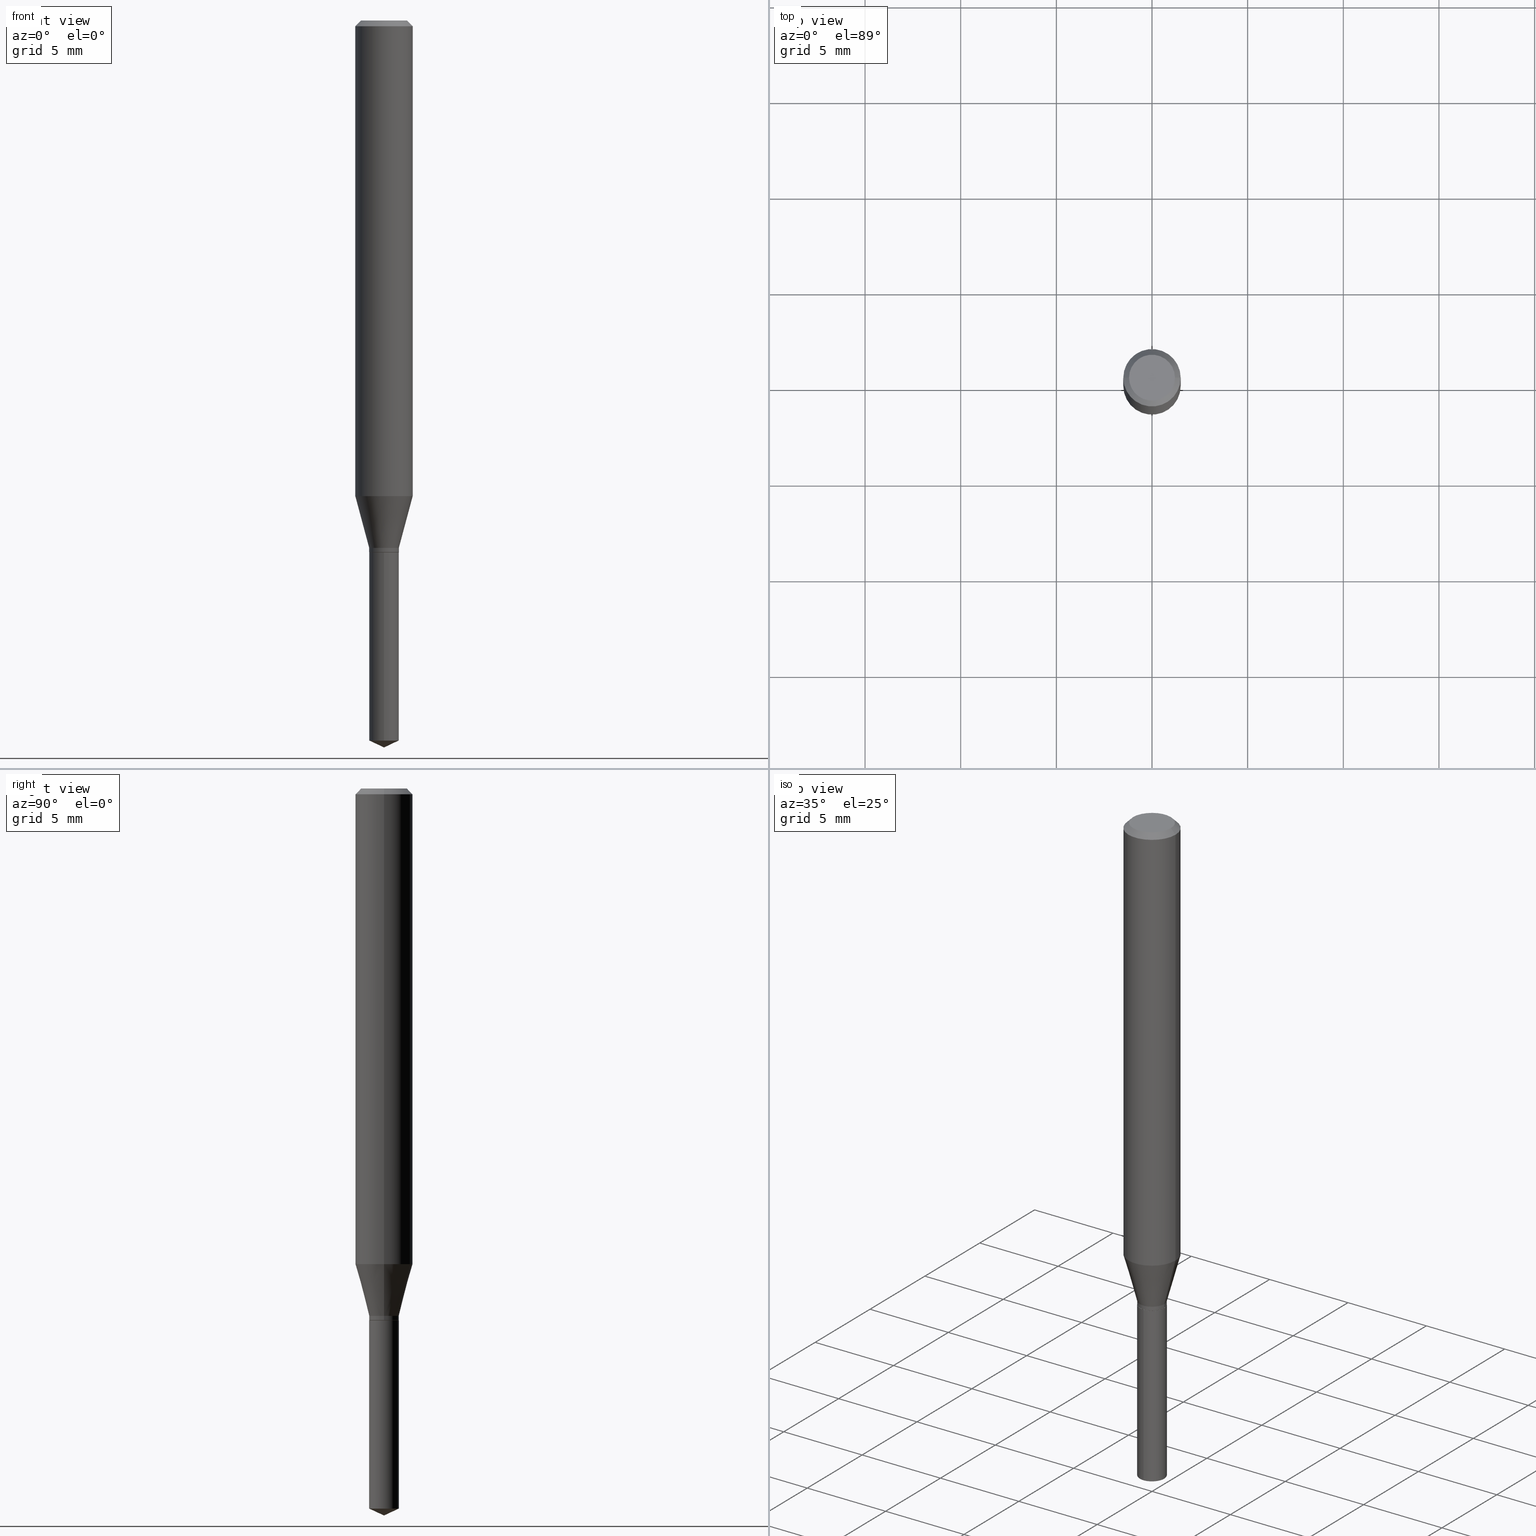
[diagram: canonical four-view strip — front | top / right | iso, engineering-drawing reading convention]
A machine part, canonical four-view strip (front | top / right | iso — engineering-drawing reading convention). The complete STEP part file that produces these views, byte-faithful:
ISO-10303-21;
HEADER;
FILE_DESCRIPTION (( 'STEP AP203' ),
    '1' );
FILE_NAME ('08168.STEP',
    '2024-04-24T13:42:21',
    ( '' ),
    ( '' ),
    'SwSTEP 2.0',
    'SolidWorks 2023',
    '' );
FILE_SCHEMA (( 'CONFIG_CONTROL_DESIGN' ));
ENDSEC;

DATA;
#1 = DIRECTION ( 'NONE',  ( 2.438088387897960049E-29, -3.491481338843145188E-15, -1.000000000000000000 ) ) ;
#2 = CONICAL_SURFACE ( 'NONE', #50, 0.05904999999999999832, 0.7853981633974450594 ) ;
#3 = ADVANCED_FACE ( 'NONE', ( #307 ), #194, .T. ) ;
#4 = ORIENTED_EDGE ( 'NONE', *, *, #460, .F. ) ;
#5 = PERSON_AND_ORGANIZATION_ROLE ( 'design_supplier' ) ;
#6 = FACE_OUTER_BOUND ( 'NONE', #361, .T. ) ;
#7 = DIRECTION ( 'NONE',  ( -2.445402730703145379E-29, 3.491575962694140016E-15, 1.000000000000000000 ) ) ;
#8 = PRODUCT_RELATED_PRODUCT_CATEGORY ( 'detail', '', ( #438 ) ) ;
#9 = AXIS2_PLACEMENT_3D ( 'NONE', #140, #23, #444 ) ;
#10 = VERTEX_POINT ( 'NONE', #227 ) ;
#11 = EDGE_LOOP ( 'NONE', ( #267, #309 ) ) ;
#12 = DIRECTION ( 'NONE',  ( -2.445468806185136597E-29, 3.491481338843145583E-15, 1.000000000000000000 ) ) ;
#13 = CIRCLE ( 'NONE', #343, 0.03049999999999999586 ) ;
#14 = EDGE_LOOP ( 'NONE', ( #466, #46, #18, #101 ) ) ;
#15 = ORIENTED_EDGE ( 'NONE', *, *, #61, .T. ) ;
#16 = APPROVAL_STATUS ( 'not_yet_approved' ) ;
#17 = CARTESIAN_POINT ( 'NONE',  ( -0.02999999999999999542, -3.605614277461681327E-15, -1.094499999999999806 ) ) ;
#18 = ORIENTED_EDGE ( 'NONE', *, *, #339, .T. ) ;
#19 =( CONVERSION_BASED_UNIT ( 'INCH', #274 ) LENGTH_UNIT ( ) NAMED_UNIT ( #145 ) );
#20 = LINE ( 'NONE', #312, #251 ) ;
#21 = VECTOR ( 'NONE', #288, 39.37007874015748143 ) ;
#22 = PERSON_AND_ORGANIZATION ( #310, #273 ) ;
#23 = DIRECTION ( 'NONE',  ( -2.445402730703145379E-29, 3.491575962694140016E-15, 1.000000000000000000 ) ) ;
#24 = CARTESIAN_POINT ( 'NONE',  ( 0.000000000000000000, 0.000000000000000000, 0.000000000000000000 ) ) ;
#25 = CARTESIAN_POINT ( 'NONE',  ( -0.05905000000000006077, 4.195754854663395916E-16, -2.904631170795524694E-30 ) ) ;
#26 = DIRECTION ( 'NONE',  ( -2.445468806185136597E-29, 3.491481338843145583E-15, 1.000000000000000000 ) ) ;
#27 = FACE_OUTER_BOUND ( 'NONE', #127, .T. ) ;
#28 = CARTESIAN_POINT ( 'NONE',  ( 2.676565608369631794E-29, -3.821426325363822773E-15, -1.094499999999999806 ) ) ;
#29 = AXIS2_PLACEMENT_3D ( 'NONE', #210, #364, #178 ) ;
#30 = EDGE_CURVE ( 'NONE', #196, #197, #373, .T. ) ;
#31 = CARTESIAN_POINT ( 'NONE',  ( 0.04724000000000000421, -3.852183633974369345E-16, -3.380025165621689721E-19 ) ) ;
#32 = LINE ( 'NONE', #135, #21 ) ;
#33 = EDGE_CURVE ( 'NONE', #469, #305, #334, .T. ) ;
#34 = DIRECTION ( 'NONE',  ( -2.445468806185136877E-29, 3.491481338843145188E-15, 1.000000000000000000 ) ) ;
#35 = ADVANCED_FACE ( 'NONE', ( #407 ), #38, .T. ) ;
#36 = VERTEX_POINT ( 'NONE', #476 ) ;
#37 = AXIS2_PLACEMENT_3D ( 'NONE', #436, #433, #359 ) ;
#38 = CYLINDRICAL_SURFACE ( 'NONE', #260, 0.03049999999999999586 ) ;
#39 = FACE_OUTER_BOUND ( 'NONE', #353, .T. ) ;
#40 = CIRCLE ( 'NONE', #381, 0.02999999999999999542 ) ;
#41 = EDGE_LOOP ( 'NONE', ( #52, #461, #418 ) ) ;
#42 = APPROVAL_DATE_TIME ( #44, #279 ) ;
#43 = EDGE_LOOP ( 'NONE', ( #163, #350, #84, #214 ) ) ;
#44 = DATE_AND_TIME ( #374, #387 ) ;
#45 = EDGE_CURVE ( 'NONE', #305, #197, #102, .T. ) ;
#46 = ORIENTED_EDGE ( 'NONE', *, *, #479, .T. ) ;
#47 = CARTESIAN_POINT ( 'NONE',  ( 8.265746106709734507E-48, -1.180129479067563789E-33, -3.380025165646692144E-19 ) ) ;
#48 = CALENDAR_DATE ( 2024, 24, 4 ) ;
#49 = AXIS2_PLACEMENT_3D ( 'NONE', #338, #7, #181 ) ;
#50 = AXIS2_PLACEMENT_3D ( 'NONE', #91, #480, #211 ) ;
#51 = ORIENTED_EDGE ( 'NONE', *, *, #218, .F. ) ;
#52 = ORIENTED_EDGE ( 'NONE', *, *, #470, .F. ) ;
#53 = ORIENTED_EDGE ( 'NONE', *, *, #460, .T. ) ;
#54 = LOCAL_TIME ( 9, 42, 21.00000000000000000, #153 ) ;
#55 = ORIENTED_EDGE ( 'NONE', *, *, #45, .F. ) ;
#56 = CIRCLE ( 'NONE', #152, 0.03049999999999999586 ) ;
#57 = ORIENTED_EDGE ( 'NONE', *, *, #346, .F. ) ;
#58 =( NAMED_UNIT ( * ) PLANE_ANGLE_UNIT ( ) SI_UNIT ( $, .RADIAN. ) );
#59 = DIRECTION ( 'NONE',  ( 1.000000000000000000, -6.982962677686272233E-15, 0.000000000000000000 ) ) ;
#60 = VERTEX_POINT ( 'NONE', #399 ) ;
#61 = EDGE_CURVE ( 'NONE', #231, #161, #20, .T. ) ;
#62 = FACE_OUTER_BOUND ( 'NONE', #463, .T. ) ;
#63 = LINE ( 'NONE', #238, #148 ) ;
#64 = FACE_OUTER_BOUND ( 'NONE', #203, .T. ) ;
#65 = DIRECTION ( 'NONE',  ( -6.982962677686265922E-15, -1.000000000000000000, 0.000000000000000000 ) ) ;
#66 = DIRECTION ( 'NONE',  ( -2.445468806185136597E-29, 3.491481338843145583E-15, 1.000000000000000000 ) ) ;
#67 = EDGE_CURVE ( 'NONE', #10, #259, #56, .T. ) ;
#68 = DIRECTION ( 'NONE',  ( 2.445468806185136597E-29, -3.491481338843145583E-15, -1.000000000000000000 ) ) ;
#69 = ADVANCED_FACE ( 'NONE', ( #391 ), #246, .F. ) ;
#70 = APPROVAL_PERSON_ORGANIZATION ( #277, #333, #358 ) ;
#71 = LINE ( 'NONE', #331, #283 ) ;
#72 = CARTESIAN_POINT ( 'NONE',  ( 4.132873053354867254E-48, -5.900647395337818946E-34, -1.690012582823346072E-19 ) ) ;
#73 = EDGE_LOOP ( 'NONE', ( #55, #272, #299, #406 ) ) ;
#74 = EDGE_CURVE ( 'NONE', #60, #161, #325, .T. ) ;
#75 = APPROVAL_STATUS ( 'not_yet_approved' ) ;
#76 = CARTESIAN_POINT ( 'NONE',  ( -0.05905000000000011628, -2.997711698410737591E-15, -0.9787499494439081404 ) ) ;
#77 = AXIS2_PLACEMENT_3D ( 'NONE', #486, #66, #447 ) ;
#78 = VECTOR ( 'NONE', #255, 39.37007874015748143 ) ;
#79 = DATE_TIME_ROLE ( 'classification_date' ) ;
#80 = EDGE_CURVE ( 'NONE', #259, #233, #321, .T. ) ;
#81 = DIRECTION ( 'NONE',  ( 1.000000000000000000, -6.982962677686272233E-15, 0.000000000000000000 ) ) ;
#82 = ORIENTED_EDGE ( 'NONE', *, *, #80, .T. ) ;
#83 = AXIS2_PLACEMENT_3D ( 'NONE', #47, #162, #471 ) ;
#84 = ORIENTED_EDGE ( 'NONE', *, *, #369, .F. ) ;
#85 = EDGE_CURVE ( 'NONE', #89, #233, #13, .T. ) ;
#86 = ORIENTED_EDGE ( 'NONE', *, *, #218, .T. ) ;
#87 = EDGE_CURVE ( 'NONE', #122, #36, #414, .T. ) ;
#88 = SECURITY_CLASSIFICATION_LEVEL ( 'unclassified' ) ;
#89 = VERTEX_POINT ( 'NONE', #324 ) ;
#90 = CONICAL_SURFACE ( 'NONE', #184, 0.02999999999999999542, 0.7853981633974056464 ) ;
#91 = CARTESIAN_POINT ( 'NONE',  ( 2.888098660104664642E-31, -4.123439461173780879E-17, -0.01181000000000007565 ) ) ;
#92 = ORIENTED_EDGE ( 'NONE', *, *, #362, .F. ) ;
#93 = DIRECTION ( 'NONE',  ( -6.982962677686265922E-15, -1.000000000000000000, 4.478439333875842027E-15 ) ) ;
#94 = CYLINDRICAL_SURFACE ( 'NONE', #465, 0.03049999999999998893 ) ;
#95 = CYLINDRICAL_SURFACE ( 'NONE', #169, 0.05905000000000006077 ) ;
#96 = DIRECTION ( 'NONE',  ( 0.2588190451025212391, 1.565188264969622362E-15, 0.9659258262890679791 ) ) ;
#97 = CIRCLE ( 'NONE', #107, 0.03049999999999998893 ) ;
#98 = PRODUCT_DEFINITION_FORMATION_WITH_SPECIFIED_SOURCE ( 'ANY', '', #438, .NOT_KNOWN. ) ;
#99 = CARTESIAN_POINT ( 'NONE',  ( 3.658567025404975087E-29, -5.223746797786701947E-15, -1.496099999999999985 ) ) ;
#100 = DIRECTION ( 'NONE',  ( 1.000000000000000000, 0.000000000000000000, 0.000000000000000000 ) ) ;
#101 = ORIENTED_EDGE ( 'NONE', *, *, #449, .F. ) ;
#102 = LINE ( 'NONE', #360, #442 ) ;
#103 = CARTESIAN_POINT ( 'NONE',  ( -2.129803616694043302E-16, -0.03050000000000381919, -1.094499999999999806 ) ) ;
#104 = CARTESIAN_POINT ( 'NONE',  ( 2.393502470420357058E-29, -3.417287183877077478E-15, -0.9787499494439081404 ) ) ;
#105 = DIRECTION ( 'NONE',  ( -0.2588190451025212391, 5.211531920934549464E-15, 0.9659258262890679791 ) ) ;
#106 = ADVANCED_FACE ( 'NONE', ( #278 ), #2, .T. ) ;
#107 = AXIS2_PLACEMENT_3D ( 'NONE', #284, #247, #217 ) ;
#108 = AXIS2_PLACEMENT_3D ( 'NONE', #485, #437, #271 ) ;
#109 = FACE_OUTER_BOUND ( 'NONE', #254, .T. ) ;
#110 = DIRECTION ( 'NONE',  ( -0.7071067811865173747, 7.493145998870245297E-15, 0.7071067811865776598 ) ) ;
#111 = COORDINATED_UNIVERSAL_TIME_OFFSET ( 5, 0, .BEHIND. ) ;
#112 = DIRECTION ( 'NONE',  ( -2.445402730703145379E-29, 3.491575962694140016E-15, 1.000000000000000000 ) ) ;
#113 = ORIENTED_EDGE ( 'NONE', *, *, #67, .T. ) ;
#114 = DATE_TIME_ROLE ( 'creation_date' ) ;
#115 = CC_DESIGN_APPROVAL ( #333, ( #269 ) ) ;
#116 = ORIENTED_EDGE ( 'NONE', *, *, #171, .F. ) ;
#117 = PERSON_AND_ORGANIZATION ( #310, #273 ) ;
#118 = DIRECTION ( 'NONE',  ( 1.000000000000000000, -6.982962677686269077E-15, 0.000000000000000000 ) ) ;
#119 = CIRCLE ( 'NONE', #126, 0.04724000000000000421 ) ;
#120 = ORIENTED_EDGE ( 'NONE', *, *, #289, .F. ) ;
#121 = ADVANCED_FACE ( 'NONE', ( #235 ), #95, .T. ) ;
#122 = VERTEX_POINT ( 'NONE', #17 ) ;
#123 = EDGE_CURVE ( 'NONE', #195, #60, #396, .T. ) ;
#124 = ORIENTED_EDGE ( 'NONE', *, *, #489, .F. ) ;
#125 = CIRCLE ( 'NONE', #397, 0.03049999999999998893 ) ;
#126 = AXIS2_PLACEMENT_3D ( 'NONE', #243, #276, #430 ) ;
#127 = EDGE_LOOP ( 'NONE', ( #379, #428, #410, #385 ) ) ;
#128 = ORIENTED_EDGE ( 'NONE', *, *, #87, .T. ) ;
#129 = DIRECTION ( 'NONE',  ( 0.7071067811865452413, -7.319954787623248157E-15, -0.7071067811865497932 ) ) ;
#130 = ORIENTED_EDGE ( 'NONE', *, *, #344, .F. ) ;
#131 = AXIS2_PLACEMENT_3D ( 'NONE', #408, #348, #458 ) ;
#132 = EDGE_CURVE ( 'NONE', #305, #469, #119, .T. ) ;
#133 = CARTESIAN_POINT ( 'NONE',  ( 0.000000000000000000, 0.000000000000000000, 0.000000000000000000 ) ) ;
#134 = APPLICATION_PROTOCOL_DEFINITION ( 'international standard', 'config_control_design', 1994, #266 ) ;
#135 = CARTESIAN_POINT ( 'NONE',  ( 2.167155344068572500E-16, 0.03049999999999617600, -1.094500000000000028 ) ) ;
#136 = DIRECTION ( 'NONE',  ( 1.000000000000000000, -6.982962677686266711E-15, 0.000000000000000000 ) ) ;
#137 = CARTESIAN_POINT ( 'NONE',  ( -0.03049999999999998546, -3.587777106463602651E-15, -1.085299999999999931 ) ) ;
#138 = ADVANCED_FACE ( 'NONE', ( #62 ), #354, .T. ) ;
#139 = APPLICATION_PROTOCOL_DEFINITION ( 'international standard', 'config_control_design', 1994, #475 ) ;
#140 = CARTESIAN_POINT ( 'NONE',  ( 2.676565608369631794E-29, -3.821426325363822773E-15, -1.094499999999999806 ) ) ;
#141 = LOCAL_TIME ( 9, 42, 21.00000000000000000, #454 ) ;
#142 = CARTESIAN_POINT ( 'NONE',  ( -2.129803616694043302E-16, -0.03050000000000381919, -1.094499999999999806 ) ) ;
#143 = CLOSED_SHELL ( 'NONE', ( #420, #417, #366, #35, #426 ) ) ;
#144 = CARTESIAN_POINT ( 'NONE',  ( -2.129803616693949131E-16, -0.03050000000000517922, -1.481877616426272581 ) ) ;
#145 = DIMENSIONAL_EXPONENTS ( 1.000000000000000000, 0.000000000000000000, 0.000000000000000000, 0.000000000000000000, 0.000000000000000000, 0.000000000000000000, 0.000000000000000000 ) ;
#146 = FACE_OUTER_BOUND ( 'NONE', #11, .T. ) ;
#147 = DIRECTION ( 'NONE',  ( 1.000000000000000000, -6.982962677686266711E-15, 4.876176775795935232E-29 ) ) ;
#148 = VECTOR ( 'NONE', #478, 39.37007874015748143 ) ;
#149 = CARTESIAN_POINT ( 'NONE',  ( 3.623859889391714850E-29, -5.173984699363546681E-15, -1.481877616426272581 ) ) ;
#150 = DIRECTION ( 'NONE',  ( -0.7071067811865452413, 2.468850131082233000E-15, -0.7071067811865497932 ) ) ;
#151 = CARTESIAN_POINT ( 'NONE',  ( 2.676565608369631794E-29, -3.821426325363822773E-15, -1.094499999999999806 ) ) ;
#152 = AXIS2_PLACEMENT_3D ( 'NONE', #237, #317, #65 ) ;
#153 = COORDINATED_UNIVERSAL_TIME_OFFSET ( 5, 0, .BEHIND. ) ;
#154 = PERSON_AND_ORGANIZATION ( #310, #273 ) ;
#155 = AXIS2_PLACEMENT_3D ( 'NONE', #104, #252, #370 ) ;
#156 = EDGE_LOOP ( 'NONE', ( #228, #389, #130, #352 ) ) ;
#157 = ORIENTED_EDGE ( 'NONE', *, *, #45, .T. ) ;
#158 = VERTEX_POINT ( 'NONE', #172 ) ;
#159 = AXIS2_PLACEMENT_3D ( 'NONE', #149, #112, #448 ) ;
#160 = AXIS2_PLACEMENT_3D ( 'NONE', #225, #351, #377 ) ;
#161 = VERTEX_POINT ( 'NONE', #137 ) ;
#162 = DIRECTION ( 'NONE',  ( -2.445468806185136597E-29, 3.491481338843145583E-15, 1.000000000000000000 ) ) ;
#163 = ORIENTED_EDGE ( 'NONE', *, *, #74, .T. ) ;
#164 = EDGE_CURVE ( 'NONE', #158, #259, #282, .T. ) ;
#165 = PERSON_AND_ORGANIZATION_ROLE ( 'creator' ) ;
#166 = DIRECTION ( 'NONE',  ( -2.445468806185136877E-29, 3.491481338843145188E-15, 1.000000000000000000 ) ) ;
#167 = CC_DESIGN_DATE_AND_TIME_ASSIGNMENT ( #378, #79, ( #258 ) ) ;
#168 = DIRECTION ( 'NONE',  ( 1.000000000000000000, -6.982962677686266711E-15, 4.876176775795935232E-29 ) ) ;
#169 = AXIS2_PLACEMENT_3D ( 'NONE', #133, #26, #357 ) ;
#170 = CYLINDRICAL_SURFACE ( 'NONE', #77, 0.05905000000000006077 ) ;
#171 = EDGE_CURVE ( 'NONE', #469, #196, #450, .T. ) ;
#172 = CARTESIAN_POINT ( 'NONE',  ( 3.658567025404975087E-29, -5.223746797786701947E-15, -1.496099999999999985 ) ) ;
#173 = COORDINATED_UNIVERSAL_TIME_OFFSET ( 5, 0, .BEHIND. ) ;
#174 = DIRECTION ( 'NONE',  ( -2.445468806185136597E-29, 3.491481338843145583E-15, 1.000000000000000000 ) ) ;
#175 = FACE_OUTER_BOUND ( 'NONE', #73, .T. ) ;
#176 = DIRECTION ( 'NONE',  ( -2.445468806185136597E-29, 3.491481338843145583E-15, 1.000000000000000000 ) ) ;
#177 = ORIENTED_EDGE ( 'NONE', *, *, #292, .F. ) ;
#178 = DIRECTION ( 'NONE',  ( -6.982962677686266711E-15, -1.000000000000000000, 3.520397390770451109E-15 ) ) ;
#179 = DIRECTION ( 'NONE',  ( -6.328713451373374112E-15, -0.9063077870366492705, 0.4226182617407007180 ) ) ;
#180 = CARTESIAN_POINT ( 'NONE',  ( 2.676565608369631794E-29, -3.821426325363822773E-15, -1.094499999999999806 ) ) ;
#181 = DIRECTION ( 'NONE',  ( -6.982962677686265922E-15, -1.000000000000000000, 4.478439333875842027E-15 ) ) ;
#182 = LINE ( 'NONE', #453, #229 ) ;
#183 = DIRECTION ( 'NONE',  ( 0.7071067811865173747, -2.468850131081940727E-15, 0.7071067811865776598 ) ) ;
#184 = AXIS2_PLACEMENT_3D ( 'NONE', #180, #290, #371 ) ;
#185 = ORIENTED_EDGE ( 'NONE', *, *, #74, .F. ) ;
#186 = VECTOR ( 'NONE', #150, 39.37007874015748143 ) ;
#187 = PERSON_AND_ORGANIZATION ( #310, #273 ) ;
#188 = CARTESIAN_POINT ( 'NONE',  ( 2.676565608369631794E-29, -3.821426325363822773E-15, -1.094499999999999806 ) ) ;
#189 = ADVANCED_FACE ( 'NONE', ( #146 ), #403, .F. ) ;
#190 = CYLINDRICAL_SURFACE ( 'NONE', #49, 0.03049999999999999586 ) ;
#191 = FACE_OUTER_BOUND ( 'NONE', #392, .T. ) ;
#192 = ORIENTED_EDGE ( 'NONE', *, *, #369, .T. ) ;
#193 = CONICAL_SURFACE ( 'NONE', #363, 84.42940631927440620, 1.134464013796316229 ) ;
#194 = CONICAL_SURFACE ( 'NONE', #223, 0.03049999999999998546, 0.2617993877991499629 ) ;
#195 = VERTEX_POINT ( 'NONE', #405 ) ;
#196 = VERTEX_POINT ( 'NONE', #365 ) ;
#197 = VERTEX_POINT ( 'NONE', #219 ) ;
#198 = CIRCLE ( 'NONE', #131, 0.03049999999999998546 ) ;
#199 = AXIS2_PLACEMENT_3D ( 'NONE', #245, #174, #281 ) ;
#200 = AXIS2_PLACEMENT_3D ( 'NONE', #319, #239, #59 ) ;
#201 = EDGE_CURVE ( 'NONE', #161, #382, #367, .T. ) ;
#202 = CALENDAR_DATE ( 2024, 24, 4 ) ;
#203 = EDGE_LOOP ( 'NONE', ( #120, #409, #472, #268 ) ) ;
#204 = PERSON_AND_ORGANIZATION_ROLE ( 'design_owner' ) ;
#205 = DIRECTION ( 'NONE',  ( -6.982962677686265922E-15, -1.000000000000000000, 4.478439333875842027E-15 ) ) ;
#206 = CC_DESIGN_PERSON_AND_ORGANIZATION_ASSIGNMENT ( #423, #462, ( #258 ) ) ;
#207 = ORIENTED_EDGE ( 'NONE', *, *, #221, .T. ) ;
#208 = DIRECTION ( 'NONE',  ( -2.445402730703145379E-29, 3.491575962694140016E-15, 1.000000000000000000 ) ) ;
#209 =( NAMED_UNIT ( * ) SI_UNIT ( $, .STERADIAN. ) SOLID_ANGLE_UNIT ( ) );
#210 = CARTESIAN_POINT ( 'NONE',  ( -9.261705871415894043E-28, 1.322399773465276608E-13, 37.87397874015748300 ) ) ;
#211 = DIRECTION ( 'NONE',  ( -1.000000000000000000, 6.982962677686266711E-15, 0.000000000000000000 ) ) ;
#212 = FACE_OUTER_BOUND ( 'NONE', #14, .T. ) ;
#213 = CARTESIAN_POINT ( 'NONE',  ( 2.676565608369631794E-29, -3.821426325363822773E-15, -1.094499999999999806 ) ) ;
#214 = ORIENTED_EDGE ( 'NONE', *, *, #339, .F. ) ;
#215 = DATE_AND_TIME ( #432, #304 ) ;
#216 = DIRECTION ( 'NONE',  ( -2.445402730703145379E-29, 3.491575962694140016E-15, 1.000000000000000000 ) ) ;
#217 = DIRECTION ( 'NONE',  ( 1.000000000000000000, -6.982962677686271444E-15, 0.000000000000000000 ) ) ;
#218 = EDGE_CURVE ( 'NONE', #36, #122, #40, .T. ) ;
#219 = CARTESIAN_POINT ( 'NONE',  ( 0.05904999999999999832, -4.535783407291118600E-16, -0.01181000000000007565 ) ) ;
#220 = APPROVAL_DATE_TIME ( #336, #401 ) ;
#221 = EDGE_CURVE ( 'NONE', #122, #231, #182, .T. ) ;
#222 = CC_DESIGN_APPROVAL ( #401, ( #98 ) ) ;
#223 = AXIS2_PLACEMENT_3D ( 'NONE', #468, #416, #81 ) ;
#224 = AXIS2_PLACEMENT_3D ( 'NONE', #327, #68, #287 ) ;
#225 = CARTESIAN_POINT ( 'NONE',  ( 2.888098660104664642E-31, -4.123439461173780879E-17, -0.01181000000000007565 ) ) ;
#226 = CARTESIAN_POINT ( 'NONE',  ( 2.675342873966538993E-29, -3.819680584694400481E-15, -1.093999999999999861 ) ) ;
#227 = CARTESIAN_POINT ( 'NONE',  ( 2.167155344068667903E-16, 0.03049999999999482986, -1.481877616426272581 ) ) ;
#228 = ORIENTED_EDGE ( 'NONE', *, *, #435, .T. ) ;
#229 = VECTOR ( 'NONE', #110, 39.37007874015748143 ) ;
#230 = EDGE_LOOP ( 'NONE', ( #303, #157, #424, #116 ) ) ;
#231 = VERTEX_POINT ( 'NONE', #488 ) ;
#232 = DATE_AND_TIME ( #202, #141 ) ;
#233 = VERTEX_POINT ( 'NONE', #103 ) ;
#234 = CC_DESIGN_SECURITY_CLASSIFICATION ( #258, ( #98 ) ) ;
#235 = FACE_OUTER_BOUND ( 'NONE', #431, .T. ) ;
#236 = ORIENTED_EDGE ( 'NONE', *, *, #470, .T. ) ;
#237 = CARTESIAN_POINT ( 'NONE',  ( 3.623859889391714850E-29, -5.173984699363546681E-15, -1.481877616426272581 ) ) ;
#238 = CARTESIAN_POINT ( 'NONE',  ( 0.05905000000000006077, -4.123439461173744764E-16, 2.879382386107503023E-30 ) ) ;
#239 = DIRECTION ( 'NONE',  ( -2.445468806185136597E-29, 3.491481338843145583E-15, 1.000000000000000000 ) ) ;
#240 = CONICAL_SURFACE ( 'NONE', #37, 0.03049999999999998546, 0.2617993877991499629 ) ;
#241 =( GEOMETRIC_REPRESENTATION_CONTEXT ( 3 ) GLOBAL_UNCERTAINTY_ASSIGNED_CONTEXT ( ( #302 ) ) GLOBAL_UNIT_ASSIGNED_CONTEXT ( ( #19, #58, #209 ) ) REPRESENTATION_CONTEXT ( 'NONE', 'WORKASPACE' ) );
#242 = CIRCLE ( 'NONE', #199, 0.05904999999999999832 ) ;
#243 = CARTESIAN_POINT ( 'NONE',  ( 8.265746106709734507E-48, -1.180129479067563789E-33, -3.380025165646692144E-19 ) ) ;
#244 = AXIS2_PLACEMENT_3D ( 'NONE', #72, #1, #291 ) ;
#245 = CARTESIAN_POINT ( 'NONE',  ( 2.888098660104664642E-31, -4.123439461173780879E-17, -0.01181000000000007565 ) ) ;
#246 = PLANE ( 'NONE',  #108 ) ;
#247 = DIRECTION ( 'NONE',  ( -2.445468806185136597E-29, 3.491481338843145583E-15, 1.000000000000000000 ) ) ;
#248 = AXIS2_PLACEMENT_3D ( 'NONE', #188, #404, #118 ) ;
#249 = DIRECTION ( 'NONE',  ( -2.445468806185136597E-29, 3.491481338843145583E-15, 1.000000000000000000 ) ) ;
#250 = CC_DESIGN_PERSON_AND_ORGANIZATION_ASSIGNMENT ( #425, #165, ( #269 ) ) ;
#251 = VECTOR ( 'NONE', #427, 39.37007874015748143 ) ;
#252 = DIRECTION ( 'NONE',  ( -2.445468806185136597E-29, 3.491481338843145583E-15, 1.000000000000000000 ) ) ;
#253 = EDGE_CURVE ( 'NONE', #10, #89, #32, .T. ) ;
#254 = EDGE_LOOP ( 'NONE', ( #86, #207, #124, #4 ) ) ;
#255 = DIRECTION ( 'NONE',  ( 6.439704144417030353E-15, 0.9063077870366522681, 0.4226182617406943898 ) ) ;
#256 = PERSON_AND_ORGANIZATION ( #310, #273 ) ;
#257 = CARTESIAN_POINT ( 'NONE',  ( -9.261705871415894043E-28, 1.322399773465276608E-13, 37.87397874015748300 ) ) ;
#258 = SECURITY_CLASSIFICATION ( '', '', #88 ) ;
#259 = VERTEX_POINT ( 'NONE', #144 ) ;
#260 = AXIS2_PLACEMENT_3D ( 'NONE', #213, #208, #93 ) ;
#261 = CALENDAR_DATE ( 2024, 24, 4 ) ;
#262 = APPROVAL_STATUS ( 'not_yet_approved' ) ;
#263 = ADVANCED_FACE ( 'NONE', ( #64 ), #170, .T. ) ;
#264 = ORIENTED_EDGE ( 'NONE', *, *, #87, .F. ) ;
#265 = ORIENTED_EDGE ( 'NONE', *, *, #85, .F. ) ;
#266 = APPLICATION_CONTEXT ( 'configuration controlled 3d designs of mechanical parts and assemblies' ) ;
#267 = ORIENTED_EDGE ( 'NONE', *, *, #33, .T. ) ;
#268 = ORIENTED_EDGE ( 'NONE', *, *, #30, .F. ) ;
#269 = PRODUCT_DEFINITION ( 'UNKNOWN', '', #98, #390 ) ;
#270 = APPROVAL_DATE_TIME ( #215, #333 ) ;
#271 = DIRECTION ( 'NONE',  ( 1.000000000000000000, -6.982962677686265922E-15, 4.876176775795935793E-29 ) ) ;
#272 = ORIENTED_EDGE ( 'NONE', *, *, #33, .F. ) ;
#273 = ORGANIZATION ( 'UNSPECIFIED', 'UNSPECIFIED', '' ) ;
#274 = LENGTH_MEASURE_WITH_UNIT ( LENGTH_MEASURE( 0.02539999999999999897 ), #341 );
#275 = ADVANCED_FACE ( 'NONE', ( #212 ), #240, .T. ) ;
#276 = DIRECTION ( 'NONE',  ( -2.445468806185136597E-29, 3.491481338843145583E-15, 1.000000000000000000 ) ) ;
#277 = PERSON_AND_ORGANIZATION ( #310, #273 ) ;
#278 = FACE_OUTER_BOUND ( 'NONE', #230, .T. ) ;
#279 = APPROVAL ( #262, 'UNSPECIFIED' ) ;
#280 = ORIENTED_EDGE ( 'NONE', *, *, #221, .F. ) ;
#281 = DIRECTION ( 'NONE',  ( 1.000000000000000000, -6.982962677686266711E-15, 0.000000000000000000 ) ) ;
#282 = LINE ( 'NONE', #99, #402 ) ;
#283 = VECTOR ( 'NONE', #183, 39.37007874015748143 ) ;
#284 = CARTESIAN_POINT ( 'NONE',  ( 2.675342873966538993E-29, -3.819680584694400481E-15, -1.093999999999999861 ) ) ;
#285 = CARTESIAN_POINT ( 'NONE',  ( 2.676565608369631794E-29, -3.821426325363822773E-15, -1.094499999999999806 ) ) ;
#286 = AXIS2_PLACEMENT_3D ( 'NONE', #28, #176, #434 ) ;
#287 = DIRECTION ( 'NONE',  ( -1.000000000000000000, 6.982962677686266711E-15, 0.000000000000000000 ) ) ;
#288 = DIRECTION ( 'NONE',  ( -2.445402730703145379E-29, 3.491575962694140016E-15, 1.000000000000000000 ) ) ;
#289 = EDGE_CURVE ( 'NONE', #382, #196, #356, .T. ) ;
#290 = DIRECTION ( 'NONE',  ( -2.445468806185136597E-29, 3.491481338843145583E-15, 1.000000000000000000 ) ) ;
#291 = DIRECTION ( 'NONE',  ( -1.000000000000000000, 6.982962677686265922E-15, -4.876176775795935793E-29 ) ) ;
#292 = EDGE_CURVE ( 'NONE', #197, #196, #242, .T. ) ;
#293 = LINE ( 'NONE', #455, #78 ) ;
#294 = ORIENTED_EDGE ( 'NONE', *, *, #289, .T. ) ;
#295 = CARTESIAN_POINT ( 'NONE',  ( 2.676565608369631794E-29, -3.821426325363822773E-15, -1.094499999999999806 ) ) ;
#296 = CIRCLE ( 'NONE', #342, 0.05905000000000011628 ) ;
#297 = ADVANCED_FACE ( 'NONE', ( #27 ), #94, .T. ) ;
#298 = MANIFOLD_SOLID_BREP ( 'Body-Move/Copy2[2]', #398 ) ;
#299 = ORIENTED_EDGE ( 'NONE', *, *, #171, .T. ) ;
#300 = PERSON_AND_ORGANIZATION_ROLE ( 'creator' ) ;
#301 = MANIFOLD_SOLID_BREP ( 'Body-Move/Copy2[1]', #143 ) ;
#302 = UNCERTAINTY_MEASURE_WITH_UNIT (LENGTH_MEASURE( 1.000000000000000082E-05 ), #19, 'distance_accuracy_value', 'NONE');
#303 = ORIENTED_EDGE ( 'NONE', *, *, #132, .F. ) ;
#304 = LOCAL_TIME ( 9, 42, 21.00000000000000000, #173 ) ;
#305 = VERTEX_POINT ( 'NONE', #31 ) ;
#306 = CONICAL_SURFACE ( 'NONE', #224, 0.05904999999999999832, 0.7853981633974450594 ) ;
#307 = FACE_OUTER_BOUND ( 'NONE', #43, .T. ) ;
#308 = ADVANCED_FACE ( 'NONE', ( #175 ), #306, .T. ) ;
#309 = ORIENTED_EDGE ( 'NONE', *, *, #132, .T. ) ;
#310 = PERSON ( 'UNSPECIFIED', 'UNSPECIFIED', 'UNSPECIFIED', ('UNSPECIFIED'), ('UNSPECIFIED'), ('UNSPECIFIED') ) ;
#311 = EDGE_LOOP ( 'NONE', ( #459, #113, #82, #265 ) ) ;
#312 = CARTESIAN_POINT ( 'NONE',  ( -0.03049999999999998893, 2.167155344068304780E-16, -1.500275202527745721E-30 ) ) ;
#313 = AXIS2_PLACEMENT_3D ( 'NONE', #295, #445, #328 ) ;
#314 = DIRECTION ( 'NONE',  ( -2.445468806185136597E-29, 3.491481338843145583E-15, 1.000000000000000000 ) ) ;
#315 = AXIS2_PLACEMENT_3D ( 'NONE', #24, #483, #168 ) ;
#316 = CC_DESIGN_DATE_AND_TIME_ASSIGNMENT ( #232, #114, ( #269 ) ) ;
#317 = DIRECTION ( 'NONE',  ( -2.445402730703145379E-29, 3.491575962694140016E-15, 1.000000000000000000 ) ) ;
#318 = CARTESIAN_POINT ( 'NONE',  ( 2.393502470420357058E-29, -3.417287183877077478E-15, -0.9787499494439081404 ) ) ;
#319 = CARTESIAN_POINT ( 'NONE',  ( 2.654067295352728283E-29, -3.789304697046465530E-15, -1.085299999999999931 ) ) ;
#320 = CARTESIAN_POINT ( 'NONE',  ( 0.000000000000000000, 0.000000000000000000, 0.000000000000000000 ) ) ;
#321 = LINE ( 'NONE', #142, #419 ) ;
#322 = APPROVAL_PERSON_ORGANIZATION ( #187, #279, #411 ) ;
#323 = CARTESIAN_POINT ( 'NONE',  ( 0.03049999999999998546, -4.002285058715896854E-15, -1.085299999999999931 ) ) ;
#324 = CARTESIAN_POINT ( 'NONE',  ( 2.167155344068668396E-16, 0.03049999999999617600, -1.094500000000000028 ) ) ;
#325 = CIRCLE ( 'NONE', #200, 0.03049999999999998546 ) ;
#326 = CC_DESIGN_PERSON_AND_ORGANIZATION_ASSIGNMENT ( #22, #204, ( #438 ) ) ;
#327 = CARTESIAN_POINT ( 'NONE',  ( 2.888098660104664642E-31, -4.123439461173780879E-17, -0.01181000000000007565 ) ) ;
#328 = DIRECTION ( 'NONE',  ( 6.982962677686265922E-15, 1.000000000000000000, -3.491575962694140016E-15 ) ) ;
#329 = CARTESIAN_POINT ( 'NONE',  ( -0.05904999999999999832, 3.711095515056362547E-16, -0.01181000000000007565 ) ) ;
#330 = CARTESIAN_POINT ( 'NONE',  ( 0.05905000000000011628, -3.829631129994452398E-15, -0.9787499494439081404 ) ) ;
#331 = CARTESIAN_POINT ( 'NONE',  ( 0.02999999999999999542, -4.030915205694410301E-15, -1.094499999999999806 ) ) ;
#332 = DIRECTION ( 'NONE',  ( 1.000000000000000000, -6.982962677686269077E-15, 0.000000000000000000 ) ) ;
#333 = APPROVAL ( #16, 'UNSPECIFIED' ) ;
#334 = CIRCLE ( 'NONE', #83, 0.04724000000000000421 ) ;
#335 = ORIENTED_EDGE ( 'NONE', *, *, #435, .F. ) ;
#336 = DATE_AND_TIME ( #261, #413 ) ;
#337 = CARTESIAN_POINT ( 'NONE',  ( -0.04724000000000000421, 3.504923541997677355E-16, -3.380025165670481712E-19 ) ) ;
#338 = CARTESIAN_POINT ( 'NONE',  ( 2.676565608369631794E-29, -3.821426325363822773E-15, -1.094499999999999806 ) ) ;
#339 = EDGE_CURVE ( 'NONE', #60, #384, #400, .T. ) ;
#340 = COORDINATED_UNIVERSAL_TIME_OFFSET ( 5, 0, .BEHIND. ) ;
#341 =( LENGTH_UNIT ( ) NAMED_UNIT ( * ) SI_UNIT ( $, .METRE. ) );
#342 = AXIS2_PLACEMENT_3D ( 'NONE', #318, #482, #136 ) ;
#343 = AXIS2_PLACEMENT_3D ( 'NONE', #285, #443, #205 ) ;
#344 = EDGE_CURVE ( 'NONE', #233, #89, #368, .T. ) ;
#345 = EDGE_LOOP ( 'NONE', ( #51, #264 ) ) ;
#346 = EDGE_CURVE ( 'NONE', #384, #197, #63, .T. ) ;
#347 = ORIENTED_EDGE ( 'NONE', *, *, #164, .F. ) ;
#348 = DIRECTION ( 'NONE',  ( -2.445468806185136597E-29, 3.491481338843145583E-15, 1.000000000000000000 ) ) ;
#349 = AXIS2_PLACEMENT_3D ( 'NONE', #441, #355, #100 ) ;
#350 = ORIENTED_EDGE ( 'NONE', *, *, #201, .T. ) ;
#351 = DIRECTION ( 'NONE',  ( -2.445468806185136597E-29, 3.491481338843145583E-15, 1.000000000000000000 ) ) ;
#352 = ORIENTED_EDGE ( 'NONE', *, *, #80, .F. ) ;
#353 = EDGE_LOOP ( 'NONE', ( #280, #128, #53, #92 ) ) ;
#354 = CYLINDRICAL_SURFACE ( 'NONE', #315, 0.03049999999999998893 ) ;
#355 = DIRECTION ( 'NONE',  ( 0.000000000000000000, 0.000000000000000000, 1.000000000000000000 ) ) ;
#356 = LINE ( 'NONE', #25, #386 ) ;
#357 = DIRECTION ( 'NONE',  ( 1.000000000000000000, -6.982962677686266711E-15, 4.876176775795935793E-29 ) ) ;
#358 = APPROVAL_ROLE ( '' ) ;
#359 = DIRECTION ( 'NONE',  ( 1.000000000000000000, -6.982962677686272233E-15, 0.000000000000000000 ) ) ;
#360 = CARTESIAN_POINT ( 'NONE',  ( 0.05904999999999999832, -4.463468013801466955E-16, -0.01181000000000007565 ) ) ;
#361 = EDGE_LOOP ( 'NONE', ( #347, #236, #335 ) ) ;
#362 = EDGE_CURVE ( 'NONE', #231, #195, #97, .T. ) ;
#363 = AXIS2_PLACEMENT_3D ( 'NONE', #257, #412, #375 ) ;
#364 = DIRECTION ( 'NONE',  ( -2.445402730703145379E-29, 3.491575962694140016E-15, 1.000000000000000000 ) ) ;
#365 = CARTESIAN_POINT ( 'NONE',  ( -0.05904999999999999832, -1.309685303778067124E-15, -0.01181000000000007565 ) ) ;
#366 = ADVANCED_FACE ( 'NONE', ( #395 ), #477, .T. ) ;
#367 = LINE ( 'NONE', #446, #452 ) ;
#368 = CIRCLE ( 'NONE', #9, 0.03049999999999999586 ) ;
#369 = EDGE_CURVE ( 'NONE', #384, #382, #296, .T. ) ;
#370 = DIRECTION ( 'NONE',  ( 1.000000000000000000, -6.982962677686266711E-15, 0.000000000000000000 ) ) ;
#371 = DIRECTION ( 'NONE',  ( 1.000000000000000000, -6.982962677686269077E-15, 0.000000000000000000 ) ) ;
#372 = PLANE ( 'NONE',  #313 ) ;
#373 = CIRCLE ( 'NONE', #160, 0.05904999999999999832 ) ;
#374 = CALENDAR_DATE ( 2024, 24, 4 ) ;
#375 = DIRECTION ( 'NONE',  ( -6.982962677686266711E-15, -1.000000000000000000, 3.520397390770451109E-15 ) ) ;
#376 = ORIENTED_EDGE ( 'NONE', *, *, #85, .T. ) ;
#377 = DIRECTION ( 'NONE',  ( 1.000000000000000000, -6.982962677686266711E-15, 0.000000000000000000 ) ) ;
#378 = DATE_AND_TIME ( #48, #54 ) ;
#379 = ORIENTED_EDGE ( 'NONE', *, *, #61, .F. ) ;
#380 = CIRCLE ( 'NONE', #159, 0.03049999999999999586 ) ;
#381 = AXIS2_PLACEMENT_3D ( 'NONE', #151, #249, #332 ) ;
#382 = VERTEX_POINT ( 'NONE', #76 ) ;
#383 = ADVANCED_FACE ( 'NONE', ( #109 ), #90, .T. ) ;
#384 = VERTEX_POINT ( 'NONE', #330 ) ;
#385 = ORIENTED_EDGE ( 'NONE', *, *, #479, .F. ) ;
#386 = VECTOR ( 'NONE', #34, 39.37007874015748143 ) ;
#387 = LOCAL_TIME ( 9, 42, 21.00000000000000000, #111 ) ;
#388 = APPROVAL_ROLE ( '' ) ;
#389 = ORIENTED_EDGE ( 'NONE', *, *, #253, .T. ) ;
#390 = DESIGN_CONTEXT ( 'detailed design', #266, 'design' ) ;
#391 = FACE_OUTER_BOUND ( 'NONE', #345, .T. ) ;
#392 = EDGE_LOOP ( 'NONE', ( #473, #376 ) ) ;
#393 = CARTESIAN_POINT ( 'NONE',  ( 0.03049999999999998893, -2.129803616694310528E-16, 1.487233916617759730E-30 ) ) ;
#394 = ADVANCED_FACE ( 'NONE', ( #39 ), #464, .T. ) ;
#395 = FACE_OUTER_BOUND ( 'NONE', #41, .T. ) ;
#396 = LINE ( 'NONE', #393, #487 ) ;
#397 = AXIS2_PLACEMENT_3D ( 'NONE', #226, #12, #467 ) ;
#398 = CLOSED_SHELL ( 'NONE', ( #383, #106, #121, #3, #138, #297, #275, #263, #308, #189, #69, #394 ) ) ;
#399 = CARTESIAN_POINT ( 'NONE',  ( 0.03049999999999998546, -4.002285058715896854E-15, -1.085299999999999931 ) ) ;
#400 = LINE ( 'NONE', #323, #415 ) ;
#401 = APPROVAL ( #75, 'UNSPECIFIED' ) ;
#402 = VECTOR ( 'NONE', #179, 39.37007874015748854 ) ;
#403 = PLANE ( 'NONE',  #244 ) ;
#404 = DIRECTION ( 'NONE',  ( -2.445468806185136597E-29, 3.491481338843145583E-15, 1.000000000000000000 ) ) ;
#405 = CARTESIAN_POINT ( 'NONE',  ( 0.03049999999999998893, -4.032660946363831805E-15, -1.093999999999999861 ) ) ;
#406 = ORIENTED_EDGE ( 'NONE', *, *, #30, .T. ) ;
#407 = FACE_OUTER_BOUND ( 'NONE', #311, .T. ) ;
#408 = CARTESIAN_POINT ( 'NONE',  ( 2.654067295352728283E-29, -3.789304697046465530E-15, -1.085299999999999931 ) ) ;
#409 = ORIENTED_EDGE ( 'NONE', *, *, #449, .T. ) ;
#410 = ORIENTED_EDGE ( 'NONE', *, *, #123, .T. ) ;
#411 = APPROVAL_ROLE ( '' ) ;
#412 = DIRECTION ( 'NONE',  ( -2.445402730703145379E-29, 3.491575962694140016E-15, 1.000000000000000000 ) ) ;
#413 = LOCAL_TIME ( 9, 42, 21.00000000000000000, #340 ) ;
#414 = CIRCLE ( 'NONE', #286, 0.02999999999999999542 ) ;
#415 = VECTOR ( 'NONE', #96, 39.37007874015748854 ) ;
#416 = DIRECTION ( 'NONE',  ( -2.445468806185136597E-29, 3.491481338843145583E-15, 1.000000000000000000 ) ) ;
#417 = ADVANCED_FACE ( 'NONE', ( #6 ), #193, .T. ) ;
#418 = ORIENTED_EDGE ( 'NONE', *, *, #67, .F. ) ;
#419 = VECTOR ( 'NONE', #216, 39.37007874015748143 ) ;
#420 = ADVANCED_FACE ( 'NONE', ( #490 ), #190, .T. ) ;
#421 = ORIENTED_EDGE ( 'NONE', *, *, #489, .T. ) ;
#422 = ORIENTED_EDGE ( 'NONE', *, *, #123, .F. ) ;
#423 = PERSON_AND_ORGANIZATION ( #310, #273 ) ;
#424 = ORIENTED_EDGE ( 'NONE', *, *, #292, .T. ) ;
#425 = PERSON_AND_ORGANIZATION ( #310, #273 ) ;
#426 = ADVANCED_FACE ( 'NONE', ( #191 ), #372, .F. ) ;
#427 = DIRECTION ( 'NONE',  ( -2.445468806185136877E-29, 3.491481338843145188E-15, 1.000000000000000000 ) ) ;
#428 = ORIENTED_EDGE ( 'NONE', *, *, #362, .T. ) ;
#429 = CC_DESIGN_PERSON_AND_ORGANIZATION_ASSIGNMENT ( #256, #300, ( #98 ) ) ;
#430 = DIRECTION ( 'NONE',  ( 1.000000000000000000, -6.982962677686266711E-15, 4.876185090822587894E-29 ) ) ;
#431 = EDGE_LOOP ( 'NONE', ( #192, #294, #177, #57 ) ) ;
#432 = CALENDAR_DATE ( 2024, 24, 4 ) ;
#433 = DIRECTION ( 'NONE',  ( -2.445468806185136597E-29, 3.491481338843145583E-15, 1.000000000000000000 ) ) ;
#434 = DIRECTION ( 'NONE',  ( 1.000000000000000000, -6.982962677686269077E-15, 0.000000000000000000 ) ) ;
#435 = EDGE_CURVE ( 'NONE', #259, #10, #380, .T. ) ;
#436 = CARTESIAN_POINT ( 'NONE',  ( 2.654067295352728283E-29, -3.789304697046465530E-15, -1.085299999999999931 ) ) ;
#437 = DIRECTION ( 'NONE',  ( -2.438088387897960049E-29, 3.491481338843145188E-15, 1.000000000000000000 ) ) ;
#438 = PRODUCT ( '08168', '08168', '', ( #474 ) ) ;
#439 = APPROVAL_PERSON_ORGANIZATION ( #117, #401, #388 ) ;
#440 = CC_DESIGN_PERSON_AND_ORGANIZATION_ASSIGNMENT ( #154, #5, ( #98 ) ) ;
#441 = CARTESIAN_POINT ( 'NONE',  ( 0.000000000000000000, 0.000000000000000000, 0.000000000000000000 ) ) ;
#442 = VECTOR ( 'NONE', #129, 39.37007874015748143 ) ;
#443 = DIRECTION ( 'NONE',  ( -2.445402730703145379E-29, 3.491575962694140016E-15, 1.000000000000000000 ) ) ;
#444 = DIRECTION ( 'NONE',  ( -6.982962677686265922E-15, -1.000000000000000000, 4.478439333875842027E-15 ) ) ;
#445 = DIRECTION ( 'NONE',  ( 2.445402730703145099E-29, -3.491575962694140016E-15, -1.000000000000000000 ) ) ;
#446 = CARTESIAN_POINT ( 'NONE',  ( -0.03049999999999998546, -3.572589162639635175E-15, -1.085299999999999931 ) ) ;
#447 = DIRECTION ( 'NONE',  ( 1.000000000000000000, -6.982962677686266711E-15, 4.876176775795935793E-29 ) ) ;
#448 = DIRECTION ( 'NONE',  ( -6.982962677686265922E-15, -1.000000000000000000, 0.000000000000000000 ) ) ;
#449 = EDGE_CURVE ( 'NONE', #382, #384, #451, .T. ) ;
#450 = LINE ( 'NONE', #329, #186 ) ;
#451 = CIRCLE ( 'NONE', #155, 0.05905000000000011628 ) ;
#452 = VECTOR ( 'NONE', #105, 39.37007874015748854 ) ;
#453 = CARTESIAN_POINT ( 'NONE',  ( -0.02999999999999999542, -3.608263504635792528E-15, -1.094499999999999806 ) ) ;
#454 = COORDINATED_UNIVERSAL_TIME_OFFSET ( 5, 0, .BEHIND. ) ;
#455 = CARTESIAN_POINT ( 'NONE',  ( 3.658712932950369103E-29, -5.223539666176875291E-15, -1.496099999999999985 ) ) ;
#456 = SHAPE_DEFINITION_REPRESENTATION ( #481, #484 ) ;
#457 = CC_DESIGN_APPROVAL ( #279, ( #258 ) ) ;
#458 = DIRECTION ( 'NONE',  ( 1.000000000000000000, -6.982962677686272233E-15, 0.000000000000000000 ) ) ;
#459 = ORIENTED_EDGE ( 'NONE', *, *, #253, .F. ) ;
#460 = EDGE_CURVE ( 'NONE', #36, #195, #71, .T. ) ;
#461 = ORIENTED_EDGE ( 'NONE', *, *, #164, .T. ) ;
#462 = PERSON_AND_ORGANIZATION_ROLE ( 'classification_officer' ) ;
#463 = EDGE_LOOP ( 'NONE', ( #421, #15, #185, #422 ) ) ;
#464 = CONICAL_SURFACE ( 'NONE', #248, 0.02999999999999999542, 0.7853981633974056464 ) ;
#465 = AXIS2_PLACEMENT_3D ( 'NONE', #320, #314, #147 ) ;
#466 = ORIENTED_EDGE ( 'NONE', *, *, #201, .F. ) ;
#467 = DIRECTION ( 'NONE',  ( 1.000000000000000000, -6.982962677686271444E-15, 0.000000000000000000 ) ) ;
#468 = CARTESIAN_POINT ( 'NONE',  ( 2.654067295352728283E-29, -3.789304697046465530E-15, -1.085299999999999931 ) ) ;
#469 = VERTEX_POINT ( 'NONE', #337 ) ;
#470 = EDGE_CURVE ( 'NONE', #158, #10, #293, .T. ) ;
#471 = DIRECTION ( 'NONE',  ( 1.000000000000000000, -6.982962677686266711E-15, 4.876185090822587894E-29 ) ) ;
#472 = ORIENTED_EDGE ( 'NONE', *, *, #346, .T. ) ;
#473 = ORIENTED_EDGE ( 'NONE', *, *, #344, .T. ) ;
#474 = MECHANICAL_CONTEXT ( 'NONE', #475, 'mechanical' ) ;
#475 = APPLICATION_CONTEXT ( 'configuration controlled 3d designs of mechanical parts and assemblies' ) ;
#476 = CARTESIAN_POINT ( 'NONE',  ( 0.02999999999999999542, -4.030915205694410301E-15, -1.094499999999999806 ) ) ;
#477 = CONICAL_SURFACE ( 'NONE', #29, 84.42940631927440620, 1.134464013796316229 ) ;
#478 = DIRECTION ( 'NONE',  ( -2.445468806185136877E-29, 3.491481338843145188E-15, 1.000000000000000000 ) ) ;
#479 = EDGE_CURVE ( 'NONE', #161, #60, #198, .T. ) ;
#480 = DIRECTION ( 'NONE',  ( 2.445468806185136597E-29, -3.491481338843145583E-15, -1.000000000000000000 ) ) ;
#481 = PRODUCT_DEFINITION_SHAPE ( 'NONE', 'NONE',  #269 ) ;
#482 = DIRECTION ( 'NONE',  ( -2.445468806185136597E-29, 3.491481338843145583E-15, 1.000000000000000000 ) ) ;
#483 = DIRECTION ( 'NONE',  ( -2.445468806185136597E-29, 3.491481338843145583E-15, 1.000000000000000000 ) ) ;
#484 = ADVANCED_BREP_SHAPE_REPRESENTATION ( '08168', ( #301, #298, #349 ), #241 ) ;
#485 = CARTESIAN_POINT ( 'NONE',  ( 2.676565608369631794E-29, -3.821426325363822773E-15, -1.094499999999999806 ) ) ;
#486 = CARTESIAN_POINT ( 'NONE',  ( 0.000000000000000000, 0.000000000000000000, 0.000000000000000000 ) ) ;
#487 = VECTOR ( 'NONE', #166, 39.37007874015748143 ) ;
#488 = CARTESIAN_POINT ( 'NONE',  ( -0.03049999999999998893, -3.587777106463602651E-15, -1.093999999999999861 ) ) ;
#489 = EDGE_CURVE ( 'NONE', #195, #231, #125, .T. ) ;
#490 = FACE_OUTER_BOUND ( 'NONE', #156, .T. ) ;
ENDSEC;
END-ISO-10303-21;
